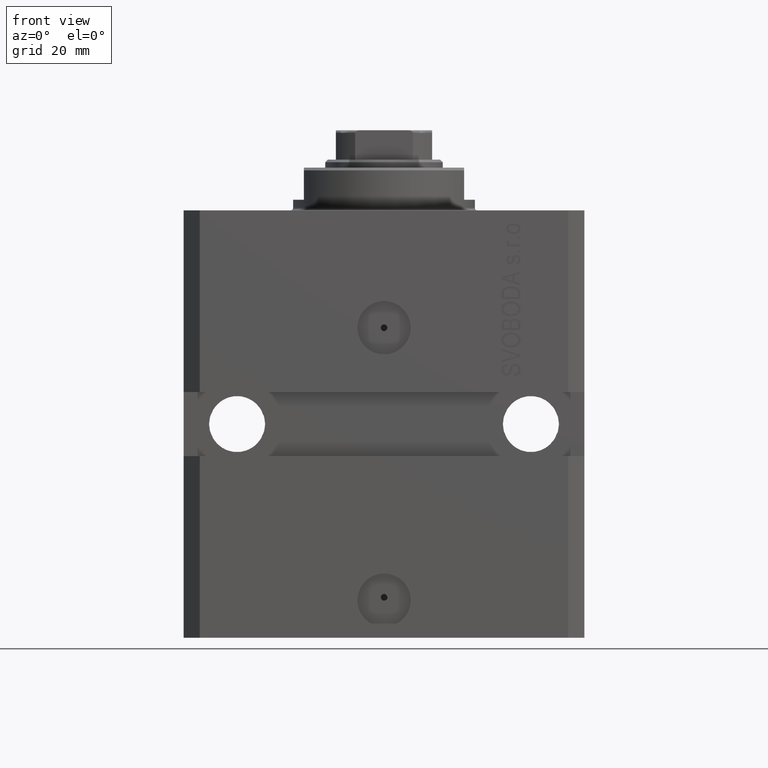
[diagram: clean part render]
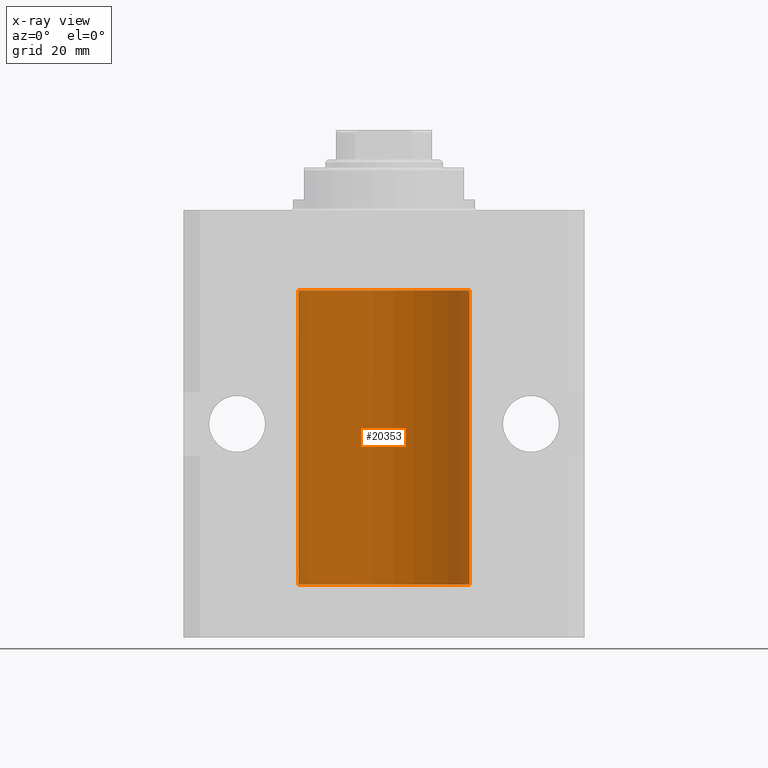
[diagram: x-ray — body ghosted, one internal face saturated and labeled with its STEP entity id]
A machine part, front view, then the same camera in x-ray: the body is ghosted and one INTERNAL B-rep face — a face not visible from any outside direction — is saturated and labeled: STEP entity #20353.
In plain terms, the highlighted cylindrical surface (partial cylindrical patch) has radius 16 mm, axis along (0, 0, 1).
Its self-contained STEP definition (entity closure, byte-faithful):
#256 = VERTEX_POINT ( 'NONE', #29617 ) ;
#497 = ORIENTED_EDGE ( 'NONE', *, *, #6213, .F. ) ;
#528 = CARTESIAN_POINT ( 'NONE',  ( 0.000000000000000000, 0.000000000000000000, -70.09999999999999432 ) ) ;
#1330 = VERTEX_POINT ( 'NONE', #37403 ) ;
#2211 = DIRECTION ( 'NONE',  ( 0.000000000000000000, 0.000000000000000000, 1.000000000000000000 ) ) ;
#3077 = CARTESIAN_POINT ( 'NONE',  ( -15.99999999999998934, 0.1631714642025807183, -68.62499999999984368 ) ) ;
#4234 = DIRECTION ( 'NONE',  ( -0.000000000000000000, -0.000000000000000000, 1.000000000000000000 ) ) ;
#4454 = ORIENTED_EDGE ( 'NONE', *, *, #26624, .T. ) ;
#5515 = DIRECTION ( 'NONE',  ( 1.000000000000000000, 0.000000000000000000, 0.000000000000000000 ) ) ;
#5781 = CARTESIAN_POINT ( 'NONE',  ( -15.99228023727724413, 0.5003781296993413674, -22.38347829554236057 ) ) ;
#6081 = LINE ( 'NONE', #21196, #31001 ) ;
#6213 = EDGE_CURVE ( 'NONE', #11614, #42071, #8359, .T. ) ;
#6468 = CARTESIAN_POINT ( 'NONE',  ( -15.99707730059171240, 0.3150375992092407373, -21.45402333202571654 ) ) ;
#6835 = VECTOR ( 'NONE', #4234, 1000.000000000000000 ) ;
#7164 = LINE ( 'NONE', #18516, #42341 ) ;
#7620 = DIRECTION ( 'NONE',  ( -0.000000000000000000, -0.000000000000000000, 1.000000000000000000 ) ) ;
#8359 = LINE ( 'NONE', #32993, #30119 ) ;
#9482 = CARTESIAN_POINT ( 'NONE',  ( -15.99070426498502862, 0.5462220647145645813, -68.31460064614141459 ) ) ;
#9760 = DIRECTION ( 'NONE',  ( 1.000000000000000000, 0.000000000000000000, 0.000000000000000000 ) ) ;
#9918 = VERTEX_POINT ( 'NONE', #25768 ) ;
#9939 = CARTESIAN_POINT ( 'NONE',  ( -16.00000000000013145, 3.685127046438747128E-13, -68.62500000000343903 ) ) ;
#11138 = EDGE_CURVE ( 'NONE', #13600, #34958, #7164, .T. ) ;
#11172 = DIRECTION ( 'NONE',  ( -0.000000000000000000, -0.000000000000000000, 1.000000000000000000 ) ) ;
#11614 = VERTEX_POINT ( 'NONE', #25257 ) ;
#11883 = EDGE_CURVE ( 'NONE', #11614, #34958, #28670, .T. ) ;
#12785 = ORIENTED_EDGE ( 'NONE', *, *, #46137, .F. ) ;
#13095 = CARTESIAN_POINT ( 'NONE',  ( -15.98844267028591482, 0.6088369347963316081, -22.16324735024328518 ) ) ;
#13495 = CARTESIAN_POINT ( 'NONE',  ( -15.98779057735153586, 0.6249419637998054888, -67.83670145863507628 ) ) ;
#13559 = CARTESIAN_POINT ( 'NONE',  ( -15.99934216141748244, 0.1636497843296417787, -21.39126528029306229 ) ) ;
#13600 = VERTEX_POINT ( 'NONE', #23703 ) ;
#14257 = DIRECTION ( 'NONE',  ( 1.000000000000000000, 0.000000000000000000, 0.000000000000000000 ) ) ;
#18221 = CIRCLE ( 'NONE', #40157, 16.00000000000000000 ) ;
#18516 = CARTESIAN_POINT ( 'NONE',  ( -16.00000000000000000, 1.959434878635765131E-15, -70.09999999999999432 ) ) ;
#18899 = CARTESIAN_POINT ( 'NONE',  ( -16.00000000000000000, 1.959434878635765131E-15, -70.09999999999999432 ) ) ;
#19593 = ORIENTED_EDGE ( 'NONE', *, *, #11138, .F. ) ;
#19747 = B_SPLINE_CURVE_WITH_KNOTS ( 'NONE', 3,
 ( #45716, #46634, #27706, #38604, #35518, #42373, #13495, #34818, #24148, #9482, #21055, #20595, #3077, #9939 ),
 .UNSPECIFIED., .F., .F.,
 ( 4, 2, 2, 2, 2, 2, 4 ),
 ( 9.902737362640428303E-19, 0.0002442776652680895785, 0.0004885553305361781812, 0.0009771106610723552782, 0.001221388326340464752, 0.001465665991608574008, 0.001954221322144763465 ),
 .UNSPECIFIED. ) ;
#20199 = CARTESIAN_POINT ( 'NONE',  ( -15.99711699979842017, 0.3253759916140657737, -22.55856151623175521 ) ) ;
#20353 = ADVANCED_FACE ( 'NONE', ( #24910 ), #29392, .F. ) ;
#20428 = CARTESIAN_POINT ( 'NONE',  ( -16.00000000000000711, 0.08259886010189904093, -21.37500000000000000 ) ) ;
#20595 = CARTESIAN_POINT ( 'NONE',  ( -15.99711699979840951, 0.3253759916140645525, -68.55856151623176231 ) ) ;
#20659 = CARTESIAN_POINT ( 'NONE',  ( -15.98778717651346071, 0.6250289588122140971, -22.08131585687052478 ) ) ;
#20890 = CARTESIAN_POINT ( 'NONE',  ( -16.00000000000000000, 0.1631714642025800244, -22.62499999999985789 ) ) ;
#21055 = CARTESIAN_POINT ( 'NONE',  ( -15.99228023727723702, 0.5003781296993395911, -68.38347829554236057 ) ) ;
#21196 = CARTESIAN_POINT ( 'NONE',  ( 16.00000000000000000, 0.000000000000000000, -70.09999999999999432 ) ) ;
#23703 = CARTESIAN_POINT ( 'NONE',  ( -16.00000000000000000, -9.346608026143465119E-15, -67.37500000000000000 ) ) ;
#24148 = CARTESIAN_POINT ( 'NONE',  ( -15.98844267028591126, 0.6088369347963314970, -68.16324735024328163 ) ) ;
#24910 = FACE_OUTER_BOUND ( 'NONE', #39680, .T. ) ;
#25257 = CARTESIAN_POINT ( 'NONE',  ( -16.00000000000000000, 1.643679961284177128E-16, -21.37499999999999645 ) ) ;
#25768 = CARTESIAN_POINT ( 'NONE',  ( -16.00000000000013145, 3.685127046438747128E-13, -68.62500000000343903 ) ) ;
#26624 = EDGE_CURVE ( 'NONE', #13600, #9918, #19747, .T. ) ;
#27706 = CARTESIAN_POINT ( 'NONE',  ( -15.99934216141748244, 0.1636497843296345067, -67.39126528029308361 ) ) ;
#28670 = B_SPLINE_CURVE_WITH_KNOTS ( 'NONE', 3,
 ( #41746, #20428, #13559, #6468, #38225, #42444, #38670, #20659, #13095, #34886, #5781, #20199, #20890, #34654 ),
 .UNSPECIFIED., .F., .F.,
 ( 4, 2, 2, 2, 2, 2, 4 ),
 ( 1.597328219370744179E-19, 0.0002442776652680942405, 0.0004885553305361882643, 0.0009771106610723839011, 0.001221388326340481665, 0.001465665991608579430, 0.001954221322144767369 ),
 .UNSPECIFIED. ) ;
#29392 = CYLINDRICAL_SURFACE ( 'NONE', #33498, 16.00000000000000000 ) ;
#29422 = DIRECTION ( 'NONE',  ( -0.000000000000000000, -0.000000000000000000, 1.000000000000000000 ) ) ;
#29617 = CARTESIAN_POINT ( 'NONE',  ( -16.00000000000000000, 1.959434878635765131E-15, -70.09999999999999432 ) ) ;
#30119 = VECTOR ( 'NONE', #29422, 1000.000000000000000 ) ;
#31001 = VECTOR ( 'NONE', #36835, 1000.000000000000000 ) ;
#32993 = CARTESIAN_POINT ( 'NONE',  ( -16.00000000000000000, 1.959434878635765131E-15, -70.09999999999999432 ) ) ;
#33498 = AXIS2_PLACEMENT_3D ( 'NONE', #528, #11172, #14257 ) ;
#34390 = CARTESIAN_POINT ( 'NONE',  ( 0.000000000000000000, 0.000000000000000000, -70.09999999999999432 ) ) ;
#34654 = CARTESIAN_POINT ( 'NONE',  ( -16.00000000000013145, 3.685127034031037939E-13, -22.62500000000341771 ) ) ;
#34818 = CARTESIAN_POINT ( 'NONE',  ( -15.98778717651346426, 0.6250289588122136530, -68.08131585687053189 ) ) ;
#34886 = CARTESIAN_POINT ( 'NONE',  ( -15.99070426498503217, 0.5462220647145618058, -22.31460064614143590 ) ) ;
#34958 = VERTEX_POINT ( 'NONE', #44226 ) ;
#35254 = EDGE_CURVE ( 'NONE', #1330, #35737, #6081, .T. ) ;
#35417 = ORIENTED_EDGE ( 'NONE', *, *, #35254, .T. ) ;
#35518 = CARTESIAN_POINT ( 'NONE',  ( -15.99548640841682712, 0.3843705577988820732, -67.50046628527007897 ) ) ;
#35737 = VERTEX_POINT ( 'NONE', #45918 ) ;
#36429 = EDGE_CURVE ( 'NONE', #256, #9918, #40218, .T. ) ;
#36835 = DIRECTION ( 'NONE',  ( -0.000000000000000000, -0.000000000000000000, 1.000000000000000000 ) ) ;
#37304 = CIRCLE ( 'NONE', #44114, 16.00000000000000000 ) ;
#37403 = CARTESIAN_POINT ( 'NONE',  ( 16.00000000000000000, 0.000000000000000000, -70.09999999999999432 ) ) ;
#37983 = EDGE_CURVE ( 'NONE', #35737, #42071, #18221, .T. ) ;
#38152 = ORIENTED_EDGE ( 'NONE', *, *, #37983, .T. ) ;
#38225 = CARTESIAN_POINT ( 'NONE',  ( -15.99548640841683067, 0.3843705577988847377, -21.50046628527008608 ) ) ;
#38593 = ORIENTED_EDGE ( 'NONE', *, *, #36429, .F. ) ;
#38604 = CARTESIAN_POINT ( 'NONE',  ( -15.99707730059171240, 0.3150375992092334654, -67.45402333202571299 ) ) ;
#38670 = CARTESIAN_POINT ( 'NONE',  ( -15.98779057735153941, 0.6249419637998100407, -21.83670145863507273 ) ) ;
#39680 = EDGE_LOOP ( 'NONE', ( #38593, #12785, #35417, #38152, #497, #41543, #19593, #4454 ) ) ;
#40157 = AXIS2_PLACEMENT_3D ( 'NONE', #42202, #2211, #9760 ) ;
#40218 = LINE ( 'NONE', #18899, #6835 ) ;
#40787 = DIRECTION ( 'NONE',  ( 0.000000000000000000, 0.000000000000000000, 1.000000000000000000 ) ) ;
#41543 = ORIENTED_EDGE ( 'NONE', *, *, #11883, .T. ) ;
#41746 = CARTESIAN_POINT ( 'NONE',  ( -16.00000000000000000, 1.643679961284177128E-16, -21.37499999999999645 ) ) ;
#42071 = VERTEX_POINT ( 'NONE', #44115 ) ;
#42202 = CARTESIAN_POINT ( 'NONE',  ( 0.000000000000000000, 0.000000000000000000, -15.00000000000000000 ) ) ;
#42341 = VECTOR ( 'NONE', #7620, 1000.000000000000000 ) ;
#42373 = CARTESIAN_POINT ( 'NONE',  ( -15.99070653155268040, 0.5573233280232966491, -67.67348148680505915 ) ) ;
#42444 = CARTESIAN_POINT ( 'NONE',  ( -15.99070653155267685, 0.5573233280232986475, -21.67348148680506625 ) ) ;
#44114 = AXIS2_PLACEMENT_3D ( 'NONE', #34390, #40787, #5515 ) ;
#44115 = CARTESIAN_POINT ( 'NONE',  ( -16.00000000000000000, 1.959434878635765131E-15, -15.00000000000000000 ) ) ;
#44226 = CARTESIAN_POINT ( 'NONE',  ( -16.00000000000013145, 3.685127034031037939E-13, -22.62500000000341771 ) ) ;
#45716 = CARTESIAN_POINT ( 'NONE',  ( -16.00000000000000000, -9.346608026143465119E-15, -67.37500000000000000 ) ) ;
#45918 = CARTESIAN_POINT ( 'NONE',  ( 16.00000000000000000, 0.000000000000000000, -15.00000000000000000 ) ) ;
#46137 = EDGE_CURVE ( 'NONE', #1330, #256, #37304, .T. ) ;
#46634 = CARTESIAN_POINT ( 'NONE',  ( -16.00000000000000711, 0.08259886010189028405, -67.37500000000001421 ) ) ;